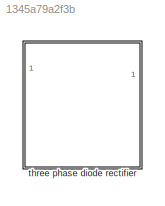
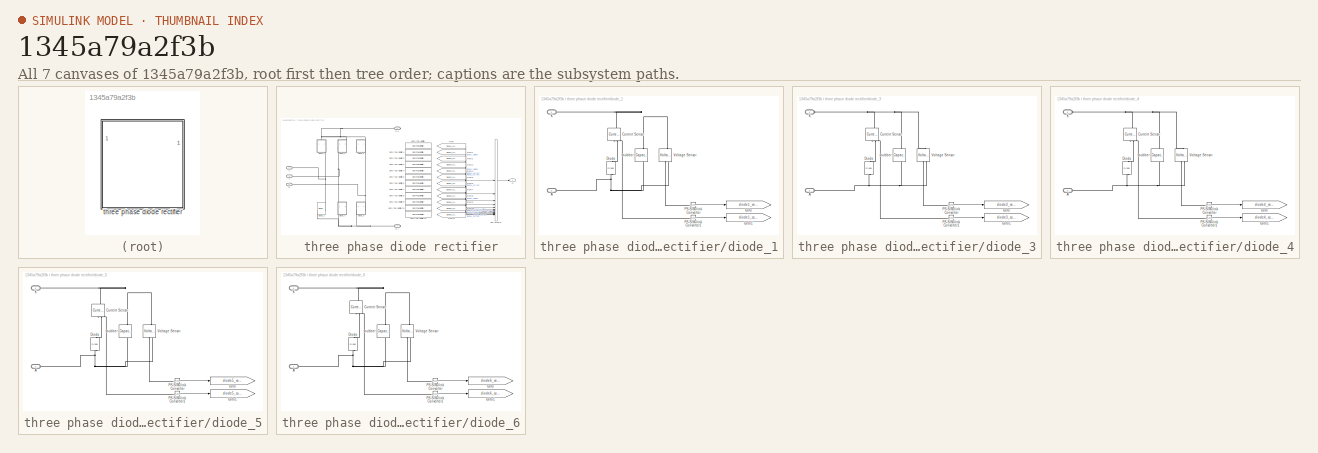
[diagram: thumbnail index - all 7 canvases of the model, root first then tree order]
MODEL slx_1345a79a2f3b
KIND library
CONFIG AbsTol = auto
CONFIG EnableMultiTasking = off
CONFIG FixedStep = auto
CONFIG MaxStep = auto
CONFIG MinStep = auto
CONFIG RelTol = 1e-3
CONFIG SampleTimeConstraint = Unconstrained
CONFIG SolverName = VariableStepAuto
CONFIG StartTime = 0.0
CONFIG StopTime = 10.0
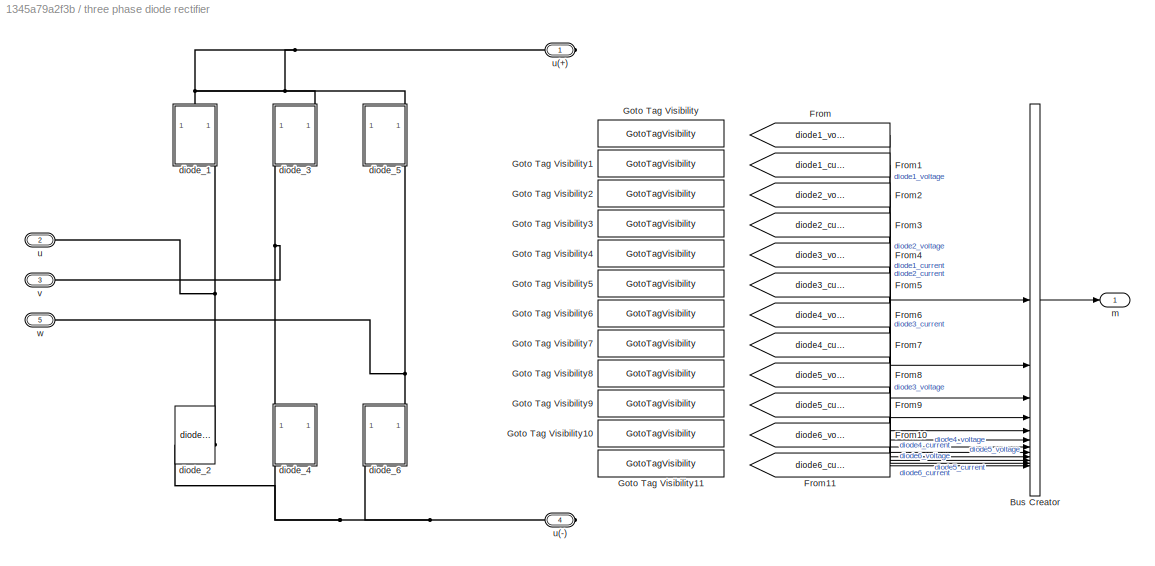
BLOCK [SubSystem] three phase diode rectifier
BLOCK [BusCreator] three phase diode rectifier/Bus Creator
  DisplayOption = bar
  InheritFromInputs = on
  Inputs = 12
BLOCK [From] three phase diode rectifier/From
  GotoTag = diode1_voltage
  TagVisibility = scoped
BLOCK [From] three phase diode rectifier/From1
  GotoTag = diode1_current
  TagVisibility = scoped
BLOCK [From] three phase diode rectifier/From10
  GotoTag = diode6_voltage
  TagVisibility = scoped
BLOCK [From] three phase diode rectifier/From11
  GotoTag = diode6_current
  TagVisibility = scoped
BLOCK [From] three phase diode rectifier/From2
  GotoTag = diode2_voltage
  TagVisibility = scoped
BLOCK [From] three phase diode rectifier/From3
  GotoTag = diode2_current
  TagVisibility = scoped
BLOCK [From] three phase diode rectifier/From4
  GotoTag = diode3_voltage
  TagVisibility = scoped
BLOCK [From] three phase diode rectifier/From5
  GotoTag = diode3_current
  TagVisibility = scoped
BLOCK [From] three phase diode rectifier/From6
  GotoTag = diode4_voltage
  TagVisibility = scoped
BLOCK [From] three phase diode rectifier/From7
  GotoTag = diode4_current
  TagVisibility = scoped
BLOCK [From] three phase diode rectifier/From8
  GotoTag = diode5_voltage
  TagVisibility = scoped
BLOCK [From] three phase diode rectifier/From9
  GotoTag = diode5_current
  TagVisibility = scoped
BLOCK [GotoTagVisibility] three phase diode rectifier/Goto Tag Visibility
  GotoTag = diode1_voltage
BLOCK [GotoTagVisibility] three phase diode rectifier/Goto Tag Visibility1
  GotoTag = diode1_current
BLOCK [GotoTagVisibility] three phase diode rectifier/Goto Tag Visibility10
  GotoTag = diode6_voltage
BLOCK [GotoTagVisibility] three phase diode rectifier/Goto Tag Visibility11
  GotoTag = diode6_current
BLOCK [GotoTagVisibility] three phase diode rectifier/Goto Tag Visibility2
  GotoTag = diode2_voltage
BLOCK [GotoTagVisibility] three phase diode rectifier/Goto Tag Visibility3
  GotoTag = diode2_current
BLOCK [GotoTagVisibility] three phase diode rectifier/Goto Tag Visibility4
  GotoTag = diode3_voltage
BLOCK [GotoTagVisibility] three phase diode rectifier/Goto Tag Visibility5
  GotoTag = diode3_current
BLOCK [GotoTagVisibility] three phase diode rectifier/Goto Tag Visibility6
  GotoTag = diode4_voltage
BLOCK [GotoTagVisibility] three phase diode rectifier/Goto Tag Visibility7
  GotoTag = diode4_current
BLOCK [GotoTagVisibility] three phase diode rectifier/Goto Tag Visibility8
  GotoTag = diode5_voltage
BLOCK [GotoTagVisibility] three phase diode rectifier/Goto Tag Visibility9
  GotoTag = diode5_current
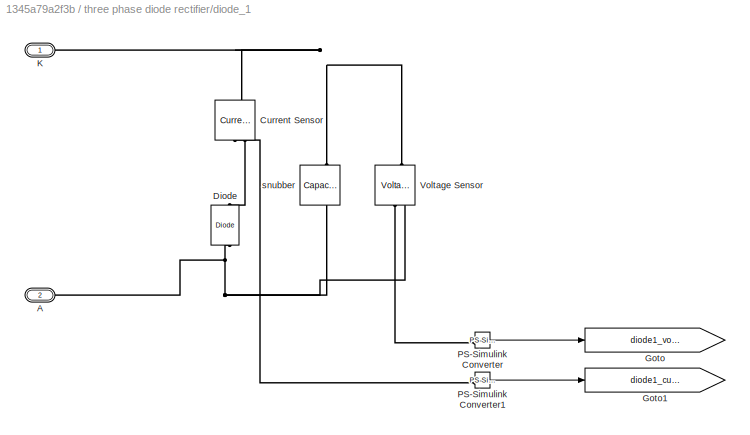
BLOCK [SubSystem] three phase diode rectifier/diode_1
  NameLocation = left
  PortSchema = {"entries":[{"content":{"sides":[{"content":{},"type":"ConnectorPlacement.EquallySpacedRectSide","uuid":"9277da8d-d460-43e6-8478-dd662f15d226"},{"content":{"side":"RIGHT"},"type":"ConnectorPlacement.EquallySpacedRectSide","uuid":"a7ece396-f1d9-4f4f-a05b-db1fc65d6e1d"},{"content":{"connectorIds":["LConn1"],"side":"TOP"},"type":"ConnectorPlacement.EquallySpacedRectSide","uuid":"fdd70777-e9cf-4317-af...<+354ch>  <repeated x5 — deduplicated; at blocks: diode_1, diode_3, diode_4, diode_5, diode_6>
BLOCK [PMIOPort] three phase diode rectifier/diode_1/A
  NameLocation = top
  Port = 2
  Side = Right
BLOCK [Reference] three phase diode rectifier/diode_1/Current Sensor  REF=fl_lib/Electrical/Electrical Sensors/Current Sensor
  NameLocation = left
  SourceBlock = fl_lib/Electrical/Electrical Sensors/Current Sensor
  SourceType = Current Sensor
BLOCK [Reference] three phase diode rectifier/diode_1/Diode  REF=fl_lib/Electrical/Electrical Elements/Diode
  NameLocation = right
  SourceBlock = fl_lib/Electrical/Electrical Elements/Diode
  SourceType = Diode
BLOCK [Goto] three phase diode rectifier/diode_1/Goto
  GotoTag = diode1_voltage
  TagVisibility = scoped
BLOCK [Goto] three phase diode rectifier/diode_1/Goto1
  GotoTag = diode1_current
  TagVisibility = scoped
BLOCK [PMIOPort] three phase diode rectifier/diode_1/K
  NameLocation = top
  Side = Left
BLOCK [Reference] three phase diode rectifier/diode_1/PS-Simulink Converter  REF=nesl_utility/PS-Simulink
Converter
  SourceBlock = nesl_utility/PS-Simulink\nConverter
  SourceType = PS-Simulink\nConverter
BLOCK [Reference] three phase diode rectifier/diode_1/PS-Simulink Converter1  REF=nesl_utility/PS-Simulink
Converter
  SourceBlock = nesl_utility/PS-Simulink\nConverter
  SourceType = PS-Simulink\nConverter
BLOCK [Reference] three phase diode rectifier/diode_1/Voltage Sensor  REF=fl_lib/Electrical/Electrical Sensors/Voltage Sensor
  NameLocation = right
  SourceBlock = fl_lib/Electrical/Electrical Sensors/Voltage Sensor
  SourceType = Voltage Sensor
BLOCK [Reference] three phase diode rectifier/diode_1/snubber  REF=fl_lib/Electrical/Electrical Elements/Capacitor
  NameLocation = left
  SourceBlock = fl_lib/Electrical/Electrical Elements/Capacitor
  SourceType = Capacitor
BLOCK [Reference] three phase diode rectifier/diode_2  REF=full_bridge_diode_rectifier/full_bridge_diode_rectifier/diode_1  (lib defined in slx_7200f0d6c2df)
  NameLocation = left
  SourceBlock = full_bridge_diode_rectifier/full_bridge_diode_rectifier/diode_1
  SourceType = SubSystem
BLOCK [SubSystem] three phase diode rectifier/diode_3
  NameLocation = left
BLOCK [PMIOPort] three phase diode rectifier/diode_3/A
  NameLocation = top
  Port = 2
  Side = Right
BLOCK [Reference] three phase diode rectifier/diode_3/Current Sensor  REF=fl_lib/Electrical/Electrical Sensors/Current Sensor
  NameLocation = left
  SourceBlock = fl_lib/Electrical/Electrical Sensors/Current Sensor
  SourceType = Current Sensor
BLOCK [Reference] three phase diode rectifier/diode_3/Diode  REF=fl_lib/Electrical/Electrical Elements/Diode
  NameLocation = right
  SourceBlock = fl_lib/Electrical/Electrical Elements/Diode
  SourceType = Diode
BLOCK [Goto] three phase diode rectifier/diode_3/Goto
  GotoTag = diode3_voltage
  TagVisibility = scoped
BLOCK [Goto] three phase diode rectifier/diode_3/Goto1
  GotoTag = diode3_current
  TagVisibility = scoped
BLOCK [PMIOPort] three phase diode rectifier/diode_3/K
  NameLocation = top
  Side = Left
BLOCK [Reference] three phase diode rectifier/diode_3/PS-Simulink Converter  REF=nesl_utility/PS-Simulink
Converter
  SourceBlock = nesl_utility/PS-Simulink\nConverter
  SourceType = PS-Simulink\nConverter
BLOCK [Reference] three phase diode rectifier/diode_3/PS-Simulink Converter1  REF=nesl_utility/PS-Simulink
Converter
  SourceBlock = nesl_utility/PS-Simulink\nConverter
  SourceType = PS-Simulink\nConverter
BLOCK [Reference] three phase diode rectifier/diode_3/Voltage Sensor  REF=fl_lib/Electrical/Electrical Sensors/Voltage Sensor
  NameLocation = right
  SourceBlock = fl_lib/Electrical/Electrical Sensors/Voltage Sensor
  SourceType = Voltage Sensor
BLOCK [Reference] three phase diode rectifier/diode_3/snubber  REF=fl_lib/Electrical/Electrical Elements/Capacitor
  NameLocation = left
  SourceBlock = fl_lib/Electrical/Electrical Elements/Capacitor
  SourceType = Capacitor
BLOCK [SubSystem] three phase diode rectifier/diode_4
  NameLocation = left
BLOCK [PMIOPort] three phase diode rectifier/diode_4/A
  NameLocation = top
  Port = 2
  Side = Right
BLOCK [Reference] three phase diode rectifier/diode_4/Current Sensor  REF=fl_lib/Electrical/Electrical Sensors/Current Sensor
  NameLocation = left
  SourceBlock = fl_lib/Electrical/Electrical Sensors/Current Sensor
  SourceType = Current Sensor
BLOCK [Reference] three phase diode rectifier/diode_4/Diode  REF=fl_lib/Electrical/Electrical Elements/Diode
  NameLocation = right
  SourceBlock = fl_lib/Electrical/Electrical Elements/Diode
  SourceType = Diode
BLOCK [Goto] three phase diode rectifier/diode_4/Goto
  GotoTag = diode4_voltage
  TagVisibility = scoped
BLOCK [Goto] three phase diode rectifier/diode_4/Goto1
  GotoTag = diode4_current
  TagVisibility = scoped
BLOCK [PMIOPort] three phase diode rectifier/diode_4/K
  NameLocation = top
  Side = Left
BLOCK [Reference] three phase diode rectifier/diode_4/PS-Simulink Converter  REF=nesl_utility/PS-Simulink
Converter
  SourceBlock = nesl_utility/PS-Simulink\nConverter
  SourceType = PS-Simulink\nConverter
BLOCK [Reference] three phase diode rectifier/diode_4/PS-Simulink Converter1  REF=nesl_utility/PS-Simulink
Converter
  SourceBlock = nesl_utility/PS-Simulink\nConverter
  SourceType = PS-Simulink\nConverter
BLOCK [Reference] three phase diode rectifier/diode_4/Voltage Sensor  REF=fl_lib/Electrical/Electrical Sensors/Voltage Sensor
  NameLocation = right
  SourceBlock = fl_lib/Electrical/Electrical Sensors/Voltage Sensor
  SourceType = Voltage Sensor
BLOCK [Reference] three phase diode rectifier/diode_4/snubber  REF=fl_lib/Electrical/Electrical Elements/Capacitor
  NameLocation = left
  SourceBlock = fl_lib/Electrical/Electrical Elements/Capacitor
  SourceType = Capacitor
BLOCK [SubSystem] three phase diode rectifier/diode_5
  NameLocation = left
BLOCK [PMIOPort] three phase diode rectifier/diode_5/A
  NameLocation = top
  Port = 2
  Side = Right
BLOCK [Reference] three phase diode rectifier/diode_5/Current Sensor  REF=fl_lib/Electrical/Electrical Sensors/Current Sensor
  NameLocation = left
  SourceBlock = fl_lib/Electrical/Electrical Sensors/Current Sensor
  SourceType = Current Sensor
BLOCK [Reference] three phase diode rectifier/diode_5/Diode  REF=fl_lib/Electrical/Electrical Elements/Diode
  NameLocation = right
  SourceBlock = fl_lib/Electrical/Electrical Elements/Diode
  SourceType = Diode
BLOCK [Goto] three phase diode rectifier/diode_5/Goto
  GotoTag = diode5_voltage
  TagVisibility = scoped
BLOCK [Goto] three phase diode rectifier/diode_5/Goto1
  GotoTag = diode5_current
  TagVisibility = scoped
BLOCK [PMIOPort] three phase diode rectifier/diode_5/K
  NameLocation = top
  Side = Left
BLOCK [Reference] three phase diode rectifier/diode_5/PS-Simulink Converter  REF=nesl_utility/PS-Simulink
Converter
  SourceBlock = nesl_utility/PS-Simulink\nConverter
  SourceType = PS-Simulink\nConverter
BLOCK [Reference] three phase diode rectifier/diode_5/PS-Simulink Converter1  REF=nesl_utility/PS-Simulink
Converter
  SourceBlock = nesl_utility/PS-Simulink\nConverter
  SourceType = PS-Simulink\nConverter
BLOCK [Reference] three phase diode rectifier/diode_5/Voltage Sensor  REF=fl_lib/Electrical/Electrical Sensors/Voltage Sensor
  NameLocation = right
  SourceBlock = fl_lib/Electrical/Electrical Sensors/Voltage Sensor
  SourceType = Voltage Sensor
BLOCK [Reference] three phase diode rectifier/diode_5/snubber  REF=fl_lib/Electrical/Electrical Elements/Capacitor
  NameLocation = left
  SourceBlock = fl_lib/Electrical/Electrical Elements/Capacitor
  SourceType = Capacitor
BLOCK [SubSystem] three phase diode rectifier/diode_6
  NameLocation = left
BLOCK [PMIOPort] three phase diode rectifier/diode_6/A
  NameLocation = top
  Port = 2
  Side = Right
BLOCK [Reference] three phase diode rectifier/diode_6/Current Sensor  REF=fl_lib/Electrical/Electrical Sensors/Current Sensor
  NameLocation = left
  SourceBlock = fl_lib/Electrical/Electrical Sensors/Current Sensor
  SourceType = Current Sensor
BLOCK [Reference] three phase diode rectifier/diode_6/Diode  REF=fl_lib/Electrical/Electrical Elements/Diode
  NameLocation = right
  SourceBlock = fl_lib/Electrical/Electrical Elements/Diode
  SourceType = Diode
BLOCK [Goto] three phase diode rectifier/diode_6/Goto
  GotoTag = diode6_voltage
  TagVisibility = scoped
BLOCK [Goto] three phase diode rectifier/diode_6/Goto1
  GotoTag = diode6_current
  TagVisibility = scoped
BLOCK [PMIOPort] three phase diode rectifier/diode_6/K
  NameLocation = top
  Side = Left
BLOCK [Reference] three phase diode rectifier/diode_6/PS-Simulink Converter  REF=nesl_utility/PS-Simulink
Converter
  SourceBlock = nesl_utility/PS-Simulink\nConverter
  SourceType = PS-Simulink\nConverter
BLOCK [Reference] three phase diode rectifier/diode_6/PS-Simulink Converter1  REF=nesl_utility/PS-Simulink
Converter
  SourceBlock = nesl_utility/PS-Simulink\nConverter
  SourceType = PS-Simulink\nConverter
BLOCK [Reference] three phase diode rectifier/diode_6/Voltage Sensor  REF=fl_lib/Electrical/Electrical Sensors/Voltage Sensor
  NameLocation = right
  SourceBlock = fl_lib/Electrical/Electrical Sensors/Voltage Sensor
  SourceType = Voltage Sensor
BLOCK [Reference] three phase diode rectifier/diode_6/snubber  REF=fl_lib/Electrical/Electrical Elements/Capacitor
  NameLocation = left
  SourceBlock = fl_lib/Electrical/Electrical Elements/Capacitor
  SourceType = Capacitor
BLOCK [Outport] three phase diode rectifier/m
BLOCK [PMIOPort] three phase diode rectifier/u
  Port = 2
  Side = Left
BLOCK [PMIOPort] three phase diode rectifier/u(+)
  Side = Right
BLOCK [PMIOPort] three phase diode rectifier/u(-)
  Port = 4
  Side = Right
BLOCK [PMIOPort] three phase diode rectifier/v
  Port = 3
  Side = Left
BLOCK [PMIOPort] three phase diode rectifier/w
  Port = 5
  Side = Left
LINE three phase diode rectifier/Bus Creator:1 -> three phase diode rectifier/m:1
LINE three phase diode rectifier/From10:1 -> three phase diode rectifier/Bus Creator:11
LINE three phase diode rectifier/From11:1 -> three phase diode rectifier/Bus Creator:12
LINE three phase diode rectifier/From1:1 -> three phase diode rectifier/Bus Creator:2
LINE three phase diode rectifier/From2:1 -> three phase diode rectifier/Bus Creator:3
LINE three phase diode rectifier/From3:1 -> three phase diode rectifier/Bus Creator:4
LINE three phase diode rectifier/From4:1 -> three phase diode rectifier/Bus Creator:5
LINE three phase diode rectifier/From5:1 -> three phase diode rectifier/Bus Creator:6
LINE three phase diode rectifier/From6:1 -> three phase diode rectifier/Bus Creator:7
LINE three phase diode rectifier/From7:1 -> three phase diode rectifier/Bus Creator:8
LINE three phase diode rectifier/From8:1 -> three phase diode rectifier/Bus Creator:9
LINE three phase diode rectifier/From9:1 -> three phase diode rectifier/Bus Creator:10
LINE three phase diode rectifier/From:1 -> three phase diode rectifier/Bus Creator:1
LINE three phase diode rectifier/diode_1/PS-Simulink Converter1:1 -> three phase diode rectifier/diode_1/Goto1:1
LINE three phase diode rectifier/diode_1/PS-Simulink Converter:1 -> three phase diode rectifier/diode_1/Goto:1
LINE three phase diode rectifier/diode_3/PS-Simulink Converter1:1 -> three phase diode rectifier/diode_3/Goto1:1
LINE three phase diode rectifier/diode_3/PS-Simulink Converter:1 -> three phase diode rectifier/diode_3/Goto:1
LINE three phase diode rectifier/diode_4/PS-Simulink Converter1:1 -> three phase diode rectifier/diode_4/Goto1:1
LINE three phase diode rectifier/diode_4/PS-Simulink Converter:1 -> three phase diode rectifier/diode_4/Goto:1
LINE three phase diode rectifier/diode_5/PS-Simulink Converter1:1 -> three phase diode rectifier/diode_5/Goto1:1
LINE three phase diode rectifier/diode_5/PS-Simulink Converter:1 -> three phase diode rectifier/diode_5/Goto:1
LINE three phase diode rectifier/diode_6/PS-Simulink Converter1:1 -> three phase diode rectifier/diode_6/Goto1:1
LINE three phase diode rectifier/diode_6/PS-Simulink Converter:1 -> three phase diode rectifier/diode_6/Goto:1
PNET net1: three phase diode rectifier/diode_1/A:RConn1 -- three phase diode rectifier/diode_1/Diode:LConn1 -- three phase diode rectifier/diode_1/Voltage Sensor:RConn2 -- three phase diode rectifier/diode_1/snubber:RConn1
PNET net2: three phase diode rectifier/diode_1/Current Sensor:LConn1 -- three phase diode rectifier/diode_1/K:RConn1 -- three phase diode rectifier/diode_1/Voltage Sensor:LConn1 -- three phase diode rectifier/diode_1/snubber:LConn1
PLINE three phase diode rectifier/diode_1/Current Sensor:RConn1 -- three phase diode rectifier/diode_1/PS-Simulink Converter1:LConn1
PLINE three phase diode rectifier/diode_1/Current Sensor:RConn2 -- three phase diode rectifier/diode_1/Diode:RConn1
PLINE three phase diode rectifier/diode_1/PS-Simulink Converter:LConn1 -- three phase diode rectifier/diode_1/Voltage Sensor:RConn1
PNET net3: three phase diode rectifier/diode_1:LConn1 -- three phase diode rectifier/diode_3:LConn1 -- three phase diode rectifier/diode_5:LConn1 -- three phase diode rectifier/u(+):RConn1
PNET net4: three phase diode rectifier/diode_1:RConn1 -- three phase diode rectifier/diode_2:LConn1 -- three phase diode rectifier/u:RConn1
PNET net5: three phase diode rectifier/diode_2:RConn1 -- three phase diode rectifier/diode_4:RConn1 -- three phase diode rectifier/diode_6:RConn1 -- three phase diode rectifier/u(-):RConn1
PNET net6: three phase diode rectifier/diode_3/A:RConn1 -- three phase diode rectifier/diode_3/Diode:LConn1 -- three phase diode rectifier/diode_3/Voltage Sensor:RConn2 -- three phase diode rectifier/diode_3/snubber:RConn1
PNET net7: three phase diode rectifier/diode_3/Current Sensor:LConn1 -- three phase diode rectifier/diode_3/K:RConn1 -- three phase diode rectifier/diode_3/Voltage Sensor:LConn1 -- three phase diode rectifier/diode_3/snubber:LConn1
PLINE three phase diode rectifier/diode_3/Current Sensor:RConn1 -- three phase diode rectifier/diode_3/PS-Simulink Converter1:LConn1
PLINE three phase diode rectifier/diode_3/Current Sensor:RConn2 -- three phase diode rectifier/diode_3/Diode:RConn1
PLINE three phase diode rectifier/diode_3/PS-Simulink Converter:LConn1 -- three phase diode rectifier/diode_3/Voltage Sensor:RConn1
PNET net8: three phase diode rectifier/diode_3:RConn1 -- three phase diode rectifier/diode_4:LConn1 -- three phase diode rectifier/v:RConn1
PNET net9: three phase diode rectifier/diode_4/A:RConn1 -- three phase diode rectifier/diode_4/Diode:LConn1 -- three phase diode rectifier/diode_4/Voltage Sensor:RConn2 -- three phase diode rectifier/diode_4/snubber:RConn1
PNET net10: three phase diode rectifier/diode_4/Current Sensor:LConn1 -- three phase diode rectifier/diode_4/K:RConn1 -- three phase diode rectifier/diode_4/Voltage Sensor:LConn1 -- three phase diode rectifier/diode_4/snubber:LConn1
PLINE three phase diode rectifier/diode_4/Current Sensor:RConn1 -- three phase diode rectifier/diode_4/PS-Simulink Converter1:LConn1
PLINE three phase diode rectifier/diode_4/Current Sensor:RConn2 -- three phase diode rectifier/diode_4/Diode:RConn1
PLINE three phase diode rectifier/diode_4/PS-Simulink Converter:LConn1 -- three phase diode rectifier/diode_4/Voltage Sensor:RConn1
PNET net11: three phase diode rectifier/diode_5/A:RConn1 -- three phase diode rectifier/diode_5/Diode:LConn1 -- three phase diode rectifier/diode_5/Voltage Sensor:RConn2 -- three phase diode rectifier/diode_5/snubber:RConn1
PNET net12: three phase diode rectifier/diode_5/Current Sensor:LConn1 -- three phase diode rectifier/diode_5/K:RConn1 -- three phase diode rectifier/diode_5/Voltage Sensor:LConn1 -- three phase diode rectifier/diode_5/snubber:LConn1
PLINE three phase diode rectifier/diode_5/Current Sensor:RConn1 -- three phase diode rectifier/diode_5/PS-Simulink Converter1:LConn1
PLINE three phase diode rectifier/diode_5/Current Sensor:RConn2 -- three phase diode rectifier/diode_5/Diode:RConn1
PLINE three phase diode rectifier/diode_5/PS-Simulink Converter:LConn1 -- three phase diode rectifier/diode_5/Voltage Sensor:RConn1
PNET net13: three phase diode rectifier/diode_5:RConn1 -- three phase diode rectifier/diode_6:LConn1 -- three phase diode rectifier/w:RConn1
PNET net14: three phase diode rectifier/diode_6/A:RConn1 -- three phase diode rectifier/diode_6/Diode:LConn1 -- three phase diode rectifier/diode_6/Voltage Sensor:RConn2 -- three phase diode rectifier/diode_6/snubber:RConn1
PNET net15: three phase diode rectifier/diode_6/Current Sensor:LConn1 -- three phase diode rectifier/diode_6/K:RConn1 -- three phase diode rectifier/diode_6/Voltage Sensor:LConn1 -- three phase diode rectifier/diode_6/snubber:LConn1
PLINE three phase diode rectifier/diode_6/Current Sensor:RConn1 -- three phase diode rectifier/diode_6/PS-Simulink Converter1:LConn1
PLINE three phase diode rectifier/diode_6/Current Sensor:RConn2 -- three phase diode rectifier/diode_6/Diode:RConn1
PLINE three phase diode rectifier/diode_6/PS-Simulink Converter:LConn1 -- three phase diode rectifier/diode_6/Voltage Sensor:RConn1
note: PNET lines group multi-terminal physical nets as a canonical sorted terminal list (undirected conserving connections); 2-terminal nets keep the pairwise PLINE form
